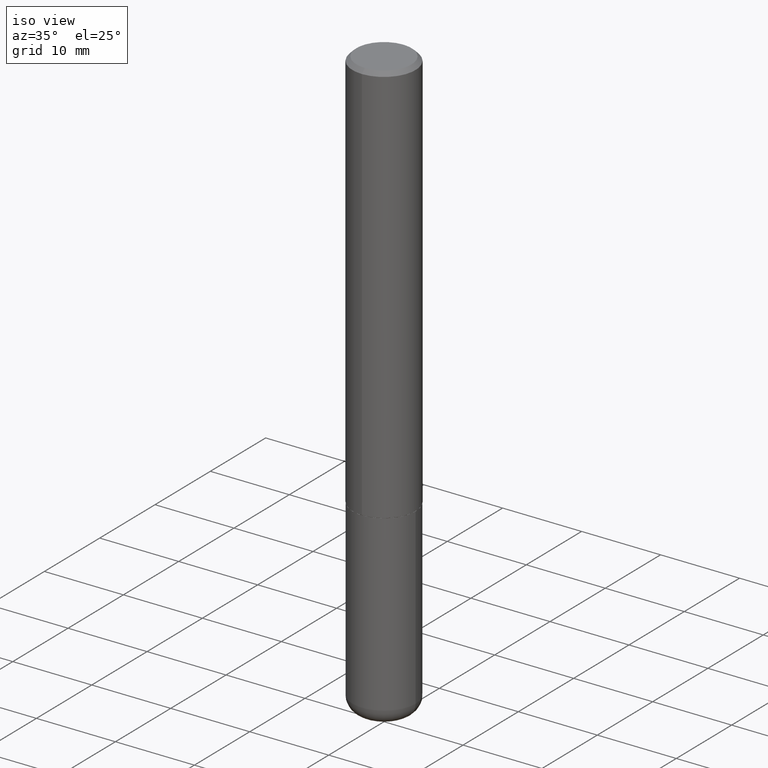
[diagram: clean part render]
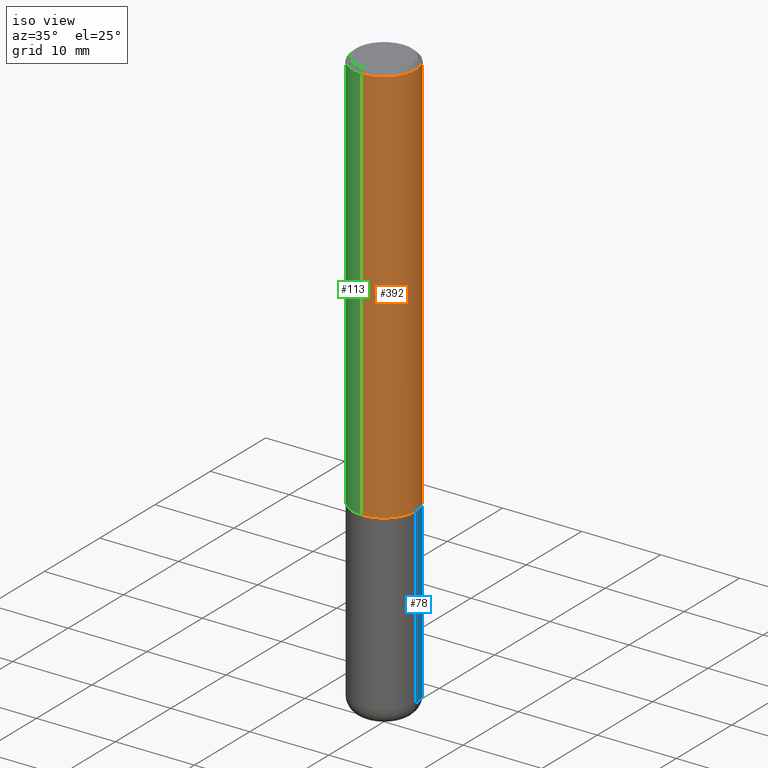
[diagram: same view with three faces highlighted in distinct colors, each labeled with its STEP entity id]
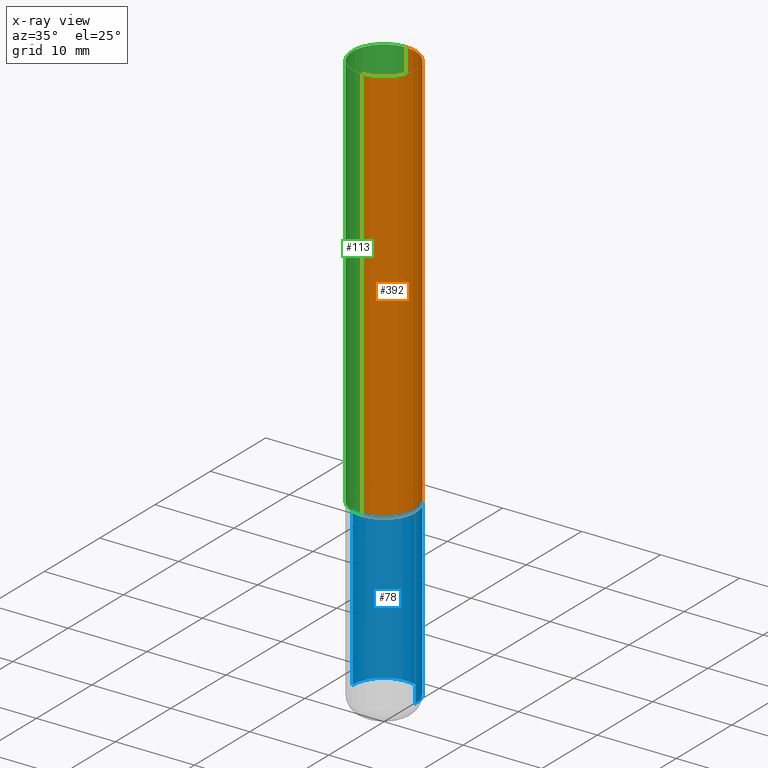
[diagram: x-ray of the same camera — body ghosted, the three highlighted faces saturated]
A machine part, iso view with three faces highlighted in distinct colors.
The next image is the same camera in x-ray (body ghosted, the three faces saturated) — at least one of them is partly hidden behind the body in this view.
Their STEP definitions:

[orange] entity #392 — the highlighted cylindrical surface (partial cylindrical patch) has radius 4.0005 mm, axis along (-0, 0, 1).
#8 = DIRECTION ( 'NONE',  ( -2.444729828315544280E-29, 3.492539597212409932E-15, 1.000000000000000000 ) ) ;
#18 = VECTOR ( 'NONE', #61, 39.37007874015748143 ) ;
#21 = VERTEX_POINT ( 'NONE', #92 ) ;
#33 = DIRECTION ( 'NONE',  ( -2.444729828315544280E-29, 3.492539597212409932E-15, 1.000000000000000000 ) ) ;
#46 = CYLINDRICAL_SURFACE ( 'NONE', #206, 0.1575000000000001399 ) ;
#48 = ORIENTED_EDGE ( 'NONE', *, *, #136, .F. ) ;
#61 = DIRECTION ( 'NONE',  ( -2.444729828315544280E-29, 3.492539597212410327E-15, 1.000000000000000000 ) ) ;
#63 = DIRECTION ( 'NONE',  ( -6.982962677686264344E-15, -1.000000000000000000, 3.496114991891764787E-15 ) ) ;
#71 = CARTESIAN_POINT ( 'NONE',  ( 1.119104808822158392E-15, 0.1575000000000001399, -5.500749865609550376E-16 ) ) ;
#92 = CARTESIAN_POINT ( 'NONE',  ( 1.119104808822183439E-15, 0.1574999999999932287, -2.006899999999999906 ) ) ;
#95 = EDGE_CURVE ( 'NONE', #229, #290, #370, .T. ) ;
#97 = VECTOR ( 'NONE', #191, 39.37007874015748143 ) ;
#136 = EDGE_CURVE ( 'NONE', #253, #229, #281, .T. ) ;
#143 = CARTESIAN_POINT ( 'NONE',  ( 0.000000000000000000, 0.000000000000000000, 0.000000000000000000 ) ) ;
#144 = ORIENTED_EDGE ( 'NONE', *, *, #278, .T. ) ;
#155 = CARTESIAN_POINT ( 'NONE',  ( -1.099816621735539360E-15, -0.1575000000000072453, -2.006899999999999018 ) ) ;
#166 = DIRECTION ( 'NONE',  ( -2.444729828315544280E-29, 3.492539597212409932E-15, 1.000000000000000000 ) ) ;
#172 = AXIS2_PLACEMENT_3D ( 'NONE', #323, #33, #354 ) ;
#176 = CARTESIAN_POINT ( 'NONE',  ( -1.099816621735587677E-15, -0.1575000000000001399, 5.500749865609550376E-16 ) ) ;
#191 = DIRECTION ( 'NONE',  ( -2.444729828315544280E-29, 3.492539597212410327E-15, 1.000000000000000000 ) ) ;
#193 = LINE ( 'NONE', #71, #97 ) ;
#199 = CIRCLE ( 'NONE', #172, 0.1575000000000002232 ) ;
#200 = DIRECTION ( 'NONE',  ( -6.982962677686265133E-15, -1.000000000000000000, 3.492539597212409932E-15 ) ) ;
#205 = ORIENTED_EDGE ( 'NONE', *, *, #95, .F. ) ;
#206 = AXIS2_PLACEMENT_3D ( 'NONE', #143, #8, #200 ) ;
#229 = VERTEX_POINT ( 'NONE', #243 ) ;
#243 = CARTESIAN_POINT ( 'NONE',  ( -1.080528434649015779E-15, -0.1575000000000000844, -0.01999999999999948347 ) ) ;
#253 = VERTEX_POINT ( 'NONE', #155 ) ;
#269 = EDGE_CURVE ( 'NONE', #21, #290, #193, .T. ) ;
#278 = EDGE_CURVE ( 'NONE', #253, #21, #199, .T. ) ;
#281 = LINE ( 'NONE', #176, #18 ) ;
#282 = ORIENTED_EDGE ( 'NONE', *, *, #269, .T. ) ;
#283 = EDGE_LOOP ( 'NONE', ( #144, #282, #205, #48 ) ) ;
#290 = VERTEX_POINT ( 'NONE', #331 ) ;
#302 = AXIS2_PLACEMENT_3D ( 'NONE', #417, #166, #63 ) ;
#323 = CARTESIAN_POINT ( 'NONE',  ( 4.906328292446464760E-29, -7.009177717645583542E-15, -2.006899999999999462 ) ) ;
#331 = CARTESIAN_POINT ( 'NONE',  ( 1.099816621735587480E-15, 0.1574999999999999456, -0.02000000000000058328 ) ) ;
#340 = FACE_OUTER_BOUND ( 'NONE', #283, .T. ) ;
#354 = DIRECTION ( 'NONE',  ( -6.982962677686265922E-15, -1.000000000000000000, 3.469013325287948560E-15 ) ) ;
#370 = CIRCLE ( 'NONE', #302, 0.1575000000000000289 ) ;
#392 = ADVANCED_FACE ( 'NONE', ( #340 ), #46, .T. ) ;
#417 = CARTESIAN_POINT ( 'NONE',  ( 4.889459656631096617E-31, -6.985079194424830218E-17, -0.02000000000000003511 ) ) ;

[blue] entity #78 — the highlighted cylindrical surface (partial cylindrical patch) has radius 4.0005 mm, axis along (-0, 0, 1).
#1 = CARTESIAN_POINT ( 'NONE',  ( -0.1575000000000000011, -7.403601139293960452E-15, -2.007899999999999796 ) ) ;
#3 = CYLINDRICAL_SURFACE ( 'NONE', #88, 0.1575000000000000011 ) ;
#4 = VERTEX_POINT ( 'NONE', #314 ) ;
#6 = DIRECTION ( 'NONE',  ( 1.000000000000000000, -6.982962677686268288E-15, 0.000000000000000000 ) ) ;
#10 = VECTOR ( 'NONE', #96, 39.37007874015748143 ) ;
#29 = CARTESIAN_POINT ( 'NONE',  ( 0.1575000000000000011, -1.099816621735586889E-15, 7.679978421878598033E-30 ) ) ;
#31 = DIRECTION ( 'NONE',  ( -2.445468806185136597E-29, 3.491481338843145583E-15, 1.000000000000000000 ) ) ;
#38 = FACE_OUTER_BOUND ( 'NONE', #83, .T. ) ;
#39 = CARTESIAN_POINT ( 'NONE',  ( 4.910256815939135309E-29, -7.010545380263150922E-15, -2.007899999999999796 ) ) ;
#49 = EDGE_CURVE ( 'NONE', #85, #236, #189, .T. ) ;
#62 = EDGE_CURVE ( 'NONE', #4, #286, #264, .T. ) ;
#78 = ADVANCED_FACE ( 'NONE', ( #38 ), #3, .T. ) ;
#83 = EDGE_LOOP ( 'NONE', ( #271, #277, #312, #123 ) ) ;
#85 = VERTEX_POINT ( 'NONE', #385 ) ;
#87 = LINE ( 'NONE', #29, #398 ) ;
#88 = AXIS2_PLACEMENT_3D ( 'NONE', #355, #135, #259 ) ;
#90 = DIRECTION ( 'NONE',  ( -2.445468806185136877E-29, 3.491481338843145188E-15, 1.000000000000000000 ) ) ;
#96 = DIRECTION ( 'NONE',  ( -2.445468806185136877E-29, 3.491481338843145188E-15, 1.000000000000000000 ) ) ;
#123 = ORIENTED_EDGE ( 'NONE', *, *, #207, .F. ) ;
#129 = DIRECTION ( 'NONE',  ( -2.445468806185136597E-29, 3.491481338843145583E-15, 1.000000000000000000 ) ) ;
#135 = DIRECTION ( 'NONE',  ( -2.445468806185136597E-29, 3.491481338843145583E-15, 1.000000000000000000 ) ) ;
#141 = AXIS2_PLACEMENT_3D ( 'NONE', #320, #31, #157 ) ;
#157 = DIRECTION ( 'NONE',  ( 1.000000000000000000, -6.982962677686261977E-15, 0.000000000000000000 ) ) ;
#180 = EDGE_CURVE ( 'NONE', #236, #286, #311, .T. ) ;
#189 = CIRCLE ( 'NONE', #141, 0.1575000000000000011 ) ;
#207 = EDGE_CURVE ( 'NONE', #85, #4, #87, .T. ) ;
#218 = CARTESIAN_POINT ( 'NONE',  ( -0.1575000000000000011, 1.119104808822157801E-15, -7.747322767151475583E-30 ) ) ;
#236 = VERTEX_POINT ( 'NONE', #373 ) ;
#259 = DIRECTION ( 'NONE',  ( 1.000000000000000000, -6.982962677686265922E-15, 4.876176775795935232E-29 ) ) ;
#264 = CIRCLE ( 'NONE', #393, 0.1575000000000000011 ) ;
#271 = ORIENTED_EDGE ( 'NONE', *, *, #49, .T. ) ;
#277 = ORIENTED_EDGE ( 'NONE', *, *, #180, .T. ) ;
#286 = VERTEX_POINT ( 'NONE', #1 ) ;
#311 = LINE ( 'NONE', #218, #10 ) ;
#312 = ORIENTED_EDGE ( 'NONE', *, *, #62, .F. ) ;
#314 = CARTESIAN_POINT ( 'NONE',  ( 0.1575000000000000011, -8.110362001998737613E-15, -2.007899999999999796 ) ) ;
#320 = CARTESIAN_POINT ( 'NONE',  ( 7.028521895856700897E-29, -1.003486651596908519E-14, -2.874099999999999877 ) ) ;
#355 = CARTESIAN_POINT ( 'NONE',  ( 0.000000000000000000, 0.000000000000000000, 0.000000000000000000 ) ) ;
#373 = CARTESIAN_POINT ( 'NONE',  ( -0.1574999999999999456, -8.915761707146927585E-15, -2.874099999999999877 ) ) ;
#385 = CARTESIAN_POINT ( 'NONE',  ( 0.1574999999999999456, -1.113468313770467030E-14, -2.874099999999999877 ) ) ;
#393 = AXIS2_PLACEMENT_3D ( 'NONE', #39, #129, #6 ) ;
#398 = VECTOR ( 'NONE', #90, 39.37007874015748143 ) ;

[green] entity #113 — the highlighted cylindrical surface (partial cylindrical patch) has radius 4.0005 mm, axis along (-0, 0, 1).
#2 = AXIS2_PLACEMENT_3D ( 'NONE', #196, #333, #367 ) ;
#18 = VECTOR ( 'NONE', #61, 39.37007874015748143 ) ;
#21 = VERTEX_POINT ( 'NONE', #92 ) ;
#26 = DIRECTION ( 'NONE',  ( -2.444729828315544280E-29, 3.492539597212409932E-15, 1.000000000000000000 ) ) ;
#52 = ORIENTED_EDGE ( 'NONE', *, *, #170, .T. ) ;
#57 = CARTESIAN_POINT ( 'NONE',  ( 4.889459656631096617E-31, -6.985079194424830218E-17, -0.02000000000000003511 ) ) ;
#61 = DIRECTION ( 'NONE',  ( -2.444729828315544280E-29, 3.492539597212410327E-15, 1.000000000000000000 ) ) ;
#71 = CARTESIAN_POINT ( 'NONE',  ( 1.119104808822158392E-15, 0.1575000000000001399, -5.500749865609550376E-16 ) ) ;
#82 = AXIS2_PLACEMENT_3D ( 'NONE', #57, #26, #407 ) ;
#86 = EDGE_LOOP ( 'NONE', ( #305, #52, #412, #146 ) ) ;
#92 = CARTESIAN_POINT ( 'NONE',  ( 1.119104808822183439E-15, 0.1574999999999932287, -2.006899999999999906 ) ) ;
#97 = VECTOR ( 'NONE', #191, 39.37007874015748143 ) ;
#113 = ADVANCED_FACE ( 'NONE', ( #388 ), #324, .T. ) ;
#136 = EDGE_CURVE ( 'NONE', #253, #229, #281, .T. ) ;
#146 = ORIENTED_EDGE ( 'NONE', *, *, #217, .F. ) ;
#155 = CARTESIAN_POINT ( 'NONE',  ( -1.099816621735539360E-15, -0.1575000000000072453, -2.006899999999999018 ) ) ;
#170 = EDGE_CURVE ( 'NONE', #21, #253, #198, .T. ) ;
#176 = CARTESIAN_POINT ( 'NONE',  ( -1.099816621735587677E-15, -0.1575000000000001399, 5.500749865609550376E-16 ) ) ;
#191 = DIRECTION ( 'NONE',  ( -2.444729828315544280E-29, 3.492539597212410327E-15, 1.000000000000000000 ) ) ;
#193 = LINE ( 'NONE', #71, #97 ) ;
#196 = CARTESIAN_POINT ( 'NONE',  ( 0.000000000000000000, 0.000000000000000000, 0.000000000000000000 ) ) ;
#197 = AXIS2_PLACEMENT_3D ( 'NONE', #345, #237, #313 ) ;
#198 = CIRCLE ( 'NONE', #197, 0.1575000000000002232 ) ;
#217 = EDGE_CURVE ( 'NONE', #290, #229, #338, .T. ) ;
#229 = VERTEX_POINT ( 'NONE', #243 ) ;
#237 = DIRECTION ( 'NONE',  ( -2.444729828315544280E-29, 3.492539597212409932E-15, 1.000000000000000000 ) ) ;
#243 = CARTESIAN_POINT ( 'NONE',  ( -1.080528434649015779E-15, -0.1575000000000000844, -0.01999999999999948347 ) ) ;
#253 = VERTEX_POINT ( 'NONE', #155 ) ;
#269 = EDGE_CURVE ( 'NONE', #21, #290, #193, .T. ) ;
#281 = LINE ( 'NONE', #176, #18 ) ;
#290 = VERTEX_POINT ( 'NONE', #331 ) ;
#305 = ORIENTED_EDGE ( 'NONE', *, *, #269, .F. ) ;
#313 = DIRECTION ( 'NONE',  ( -6.982962677686265922E-15, -1.000000000000000000, 3.469013325287948560E-15 ) ) ;
#324 = CYLINDRICAL_SURFACE ( 'NONE', #2, 0.1575000000000001399 ) ;
#331 = CARTESIAN_POINT ( 'NONE',  ( 1.099816621735587480E-15, 0.1574999999999999456, -0.02000000000000058328 ) ) ;
#333 = DIRECTION ( 'NONE',  ( -2.444729828315544280E-29, 3.492539597212409932E-15, 1.000000000000000000 ) ) ;
#338 = CIRCLE ( 'NONE', #82, 0.1575000000000000289 ) ;
#345 = CARTESIAN_POINT ( 'NONE',  ( 4.906328292446464760E-29, -7.009177717645583542E-15, -2.006899999999999462 ) ) ;
#367 = DIRECTION ( 'NONE',  ( -6.982962677686265133E-15, -1.000000000000000000, 3.492539597212409932E-15 ) ) ;
#388 = FACE_OUTER_BOUND ( 'NONE', #86, .T. ) ;
#407 = DIRECTION ( 'NONE',  ( -6.982962677686264344E-15, -1.000000000000000000, 3.496114991891764787E-15 ) ) ;
#412 = ORIENTED_EDGE ( 'NONE', *, *, #136, .T. ) ;